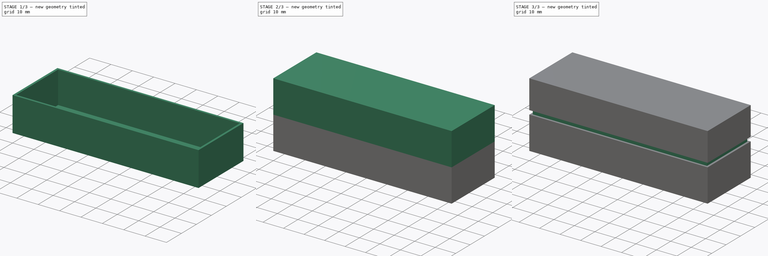
[diagram: build sequence overview — one tinted view per stage of 3, left to right]
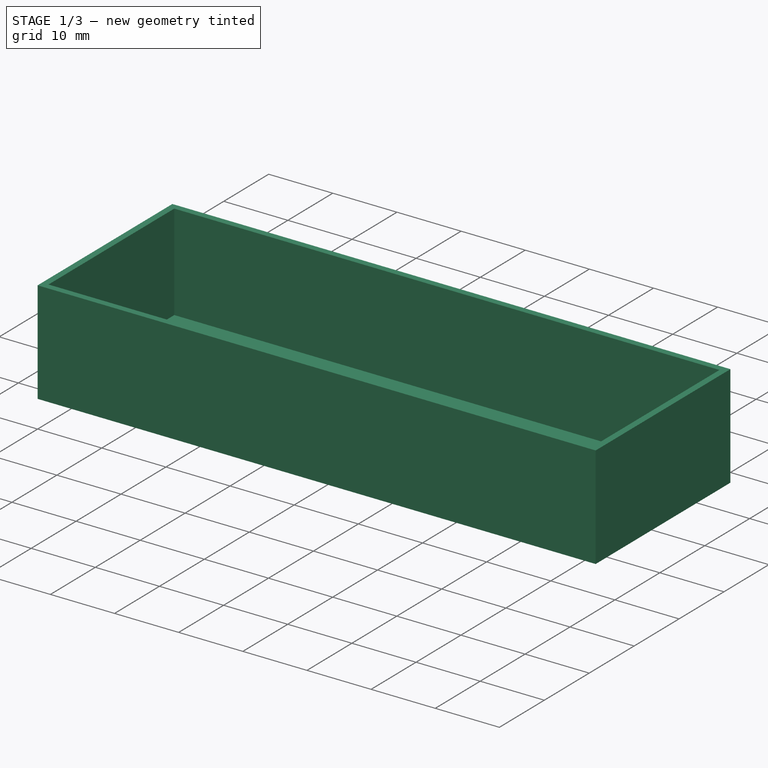
[diagram: stage 1 of 3 — iso view after this stage's code; geometry added in this stage tinted green]
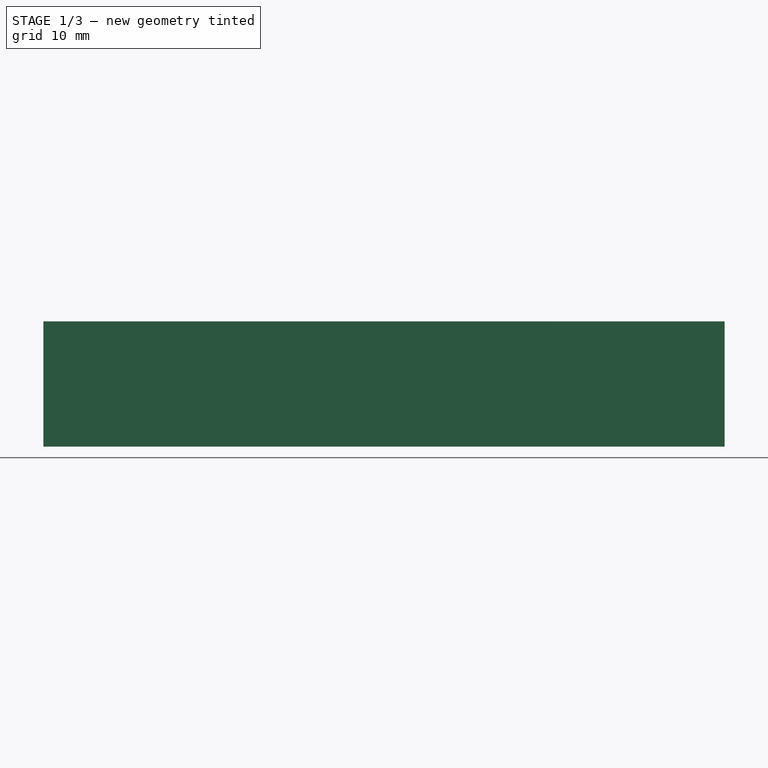
[diagram: stage 1 of 3 — front view after this stage's code; geometry added in this stage tinted green]
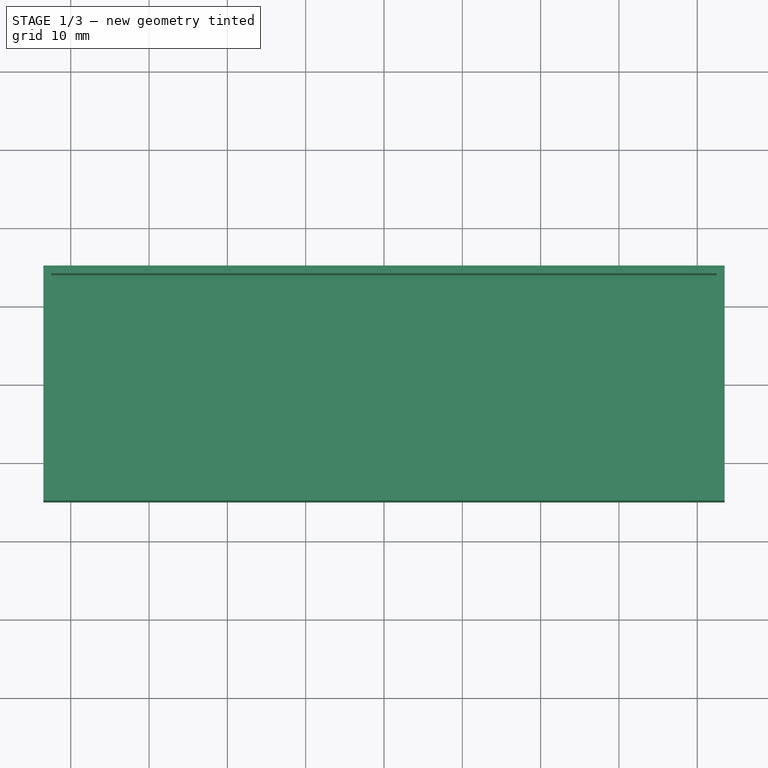
[diagram: stage 1 of 3 — top view after this stage's code; geometry added in this stage tinted green]
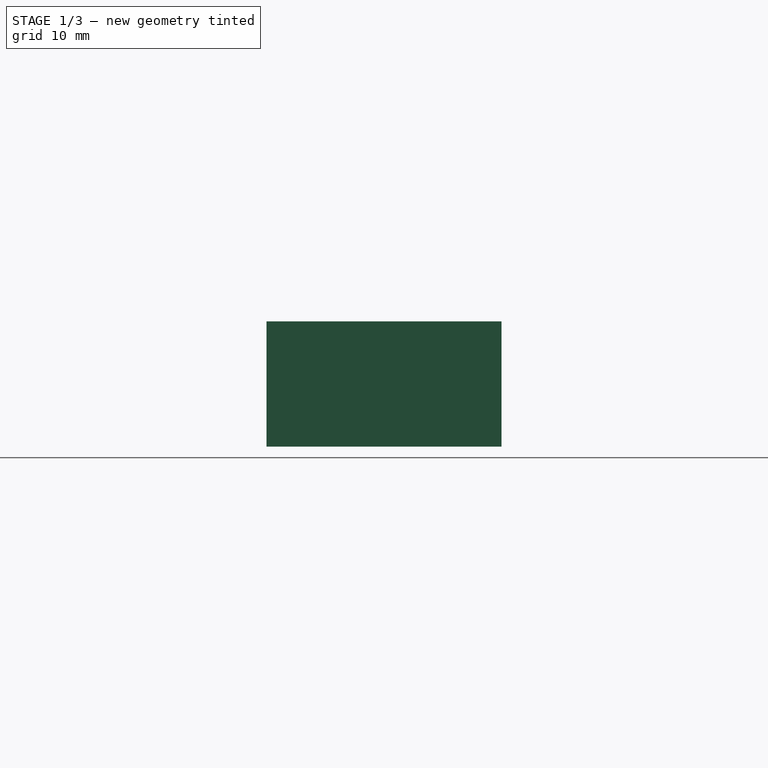
[diagram: stage 1 of 3 — right view after this stage's code; geometry added in this stage tinted green]
FCSTD DOCUMENT  (FreeCAD 0.19R24291 (Git))
Label: Bumuntu
License: All rights reserved
LicenseURL: http://en.wikipedia.org/wiki/All_rights_reserved
objects: Sketcher::SketchObject×5, PartDesign::Pocket×3, PartDesign::Pad×2, PartDesign::Body×2, Spreadsheet::Sheet×1, PartDesign::Fillet×1
note: 19 computed .brp shape members not serialized (recipe doc carries the construction recipe); baked Part::Feature solids carry a one-line shape summary decoded from their .brp

FEATURE [PartDesign::Body] Body  label="TileSleeve"
  Group = -> [Sketch,Pad,Sketch001,Pocket,Sketch002,Pocket001,Fillet]
  Origin = -> Origin
  Tip = -> Fillet
FEATURE [Sketcher::SketchObject] Sketch003
  FullyConstrained = true
  MapMode = 5
  Support = -> [XY_Plane001]
  expr: Constraints[9] = <<Spreadsheet>>.tile_width + 2 * <<Spreadsheet>>.wall_thickness
  expr: Constraints[8] = <<Spreadsheet>>.tile_thickness + 2 * <<Spreadsheet>>.wall_thickness
  sketch-geometry (4):
    g0: LineSegment StartX=-43.5 StartY=15 StartZ=0 EndX=43.5 EndY=15 EndZ=0
    g1: LineSegment StartX=43.5 StartY=15 StartZ=0 EndX=43.5 EndY=-15 EndZ=0
    g2: LineSegment StartX=43.5 StartY=-15 StartZ=0 EndX=-43.5 EndY=-15 EndZ=0
    g3: LineSegment StartX=-43.5 StartY=-15 StartZ=0 EndX=-43.5 EndY=15 EndZ=0
  constraints (10):
    c: Coincident(g0,g1)
    c: Coincident(g1,g2)
    c: Coincident(g2,g3)
    c: Coincident(g3,g0)
    c: Horizontal(g2)
    c: Vertical(g3)
    c: Symmetric(g0,g1,g-1)
    c: Symmetric(g0,g0,g-2)
    c: DistanceX(g0,g0) = 87
    c: DistanceY(g3,g3) = 30
FEATURE [PartDesign::Pad] Pad001
  Direction = (1,1,1)
  Length = 16
  Length2 = 100
  Profile = -> Sketch003
  Reversed = true
  Type = 0
  expr: Length = <<Spreadsheet>>.floor_thickness + <<Spreadsheet>>.tile_width / 2 + <<Spreadsheet>>.wall_thickness
FEATURE [Sketcher::SketchObject] Sketch004
  FullyConstrained = true
  MapMode = 5
  Support = -> [XY_Plane001]
  expr: Constraints[9] = <<Spreadsheet>>.wall_thickness + <<Spreadsheet>>.tile_width
  expr: Constraints[8] = <<Spreadsheet>>.wall_thickness + <<Spreadsheet>>.tile_thickness
  sketch-geometry (4):
    g0: LineSegment StartX=-42.5 StartY=14 StartZ=0 EndX=42.5 EndY=14 EndZ=0
    g1: LineSegment StartX=42.5 StartY=14 StartZ=0 EndX=42.5 EndY=-14 EndZ=0
    g2: LineSegment StartX=42.5 StartY=-14 StartZ=0 EndX=-42.5 EndY=-14 EndZ=0
    g3: LineSegment StartX=-42.5 StartY=-14 StartZ=0 EndX=-42.5 EndY=14 EndZ=0
  constraints (10):
    c: Coincident(g0,g1)
    c: Coincident(g1,g2)
    c: Coincident(g2,g3)
    c: Coincident(g3,g0)
    c: Horizontal(g2)
    c: Vertical(g1)
    c: Symmetric(g0,g0,g-2)
    c: Symmetric(g0,g2,g-1)
    c: DistanceX(g0,g0) = 85
    c: DistanceY(g3,g3) = 28
FEATURE [PartDesign::Pocket] Pocket002
  BaseFeature = -> Pad001
  Length = 15
  Length2 = 100
  Profile = -> Sketch004
  Type = 0
  expr: Length = <<Spreadsheet>>.wall_thickness + <<Spreadsheet>>.tile_width / 2
FEATURE [PartDesign::Body] Body001  label="TileLid"
  Group = -> [Sketch003,Pad001,Sketch004,Pocket002]
  Origin = -> Origin001
  Tip = -> Pocket002
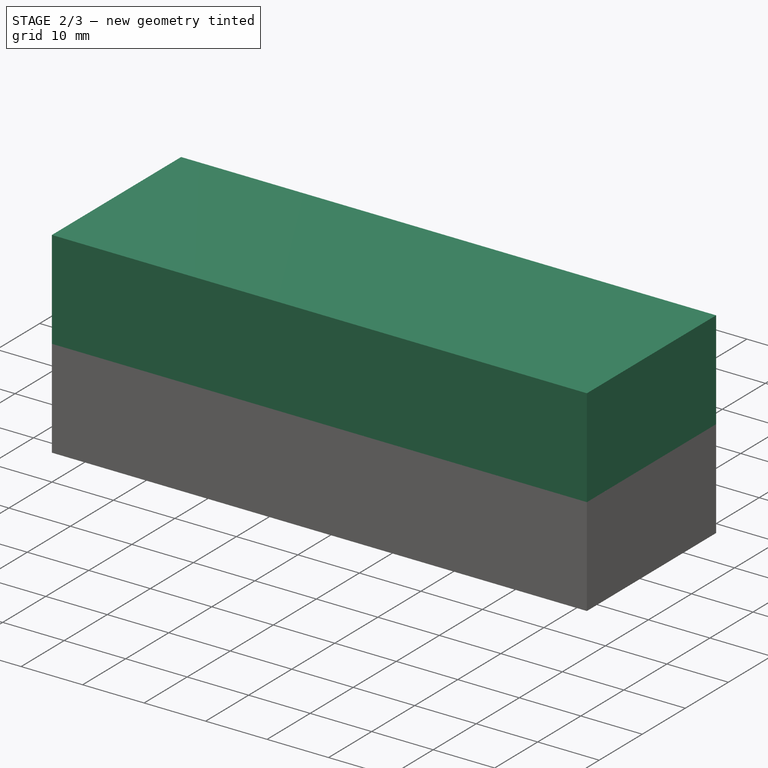
[diagram: stage 2 of 3 — iso view after this stage's code; geometry added in this stage tinted green]
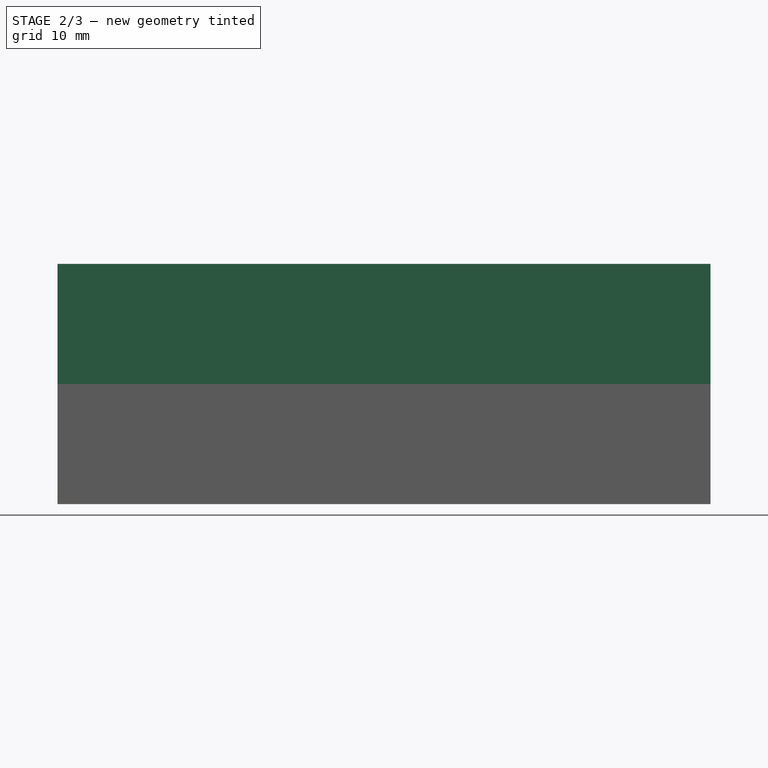
[diagram: stage 2 of 3 — front view after this stage's code; geometry added in this stage tinted green]
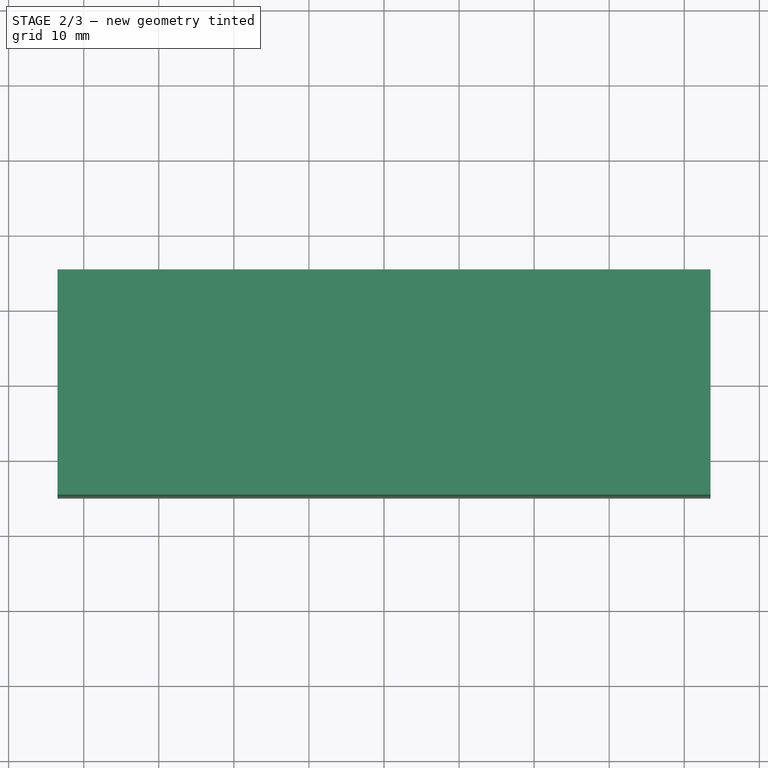
[diagram: stage 2 of 3 — top view after this stage's code; geometry added in this stage tinted green]
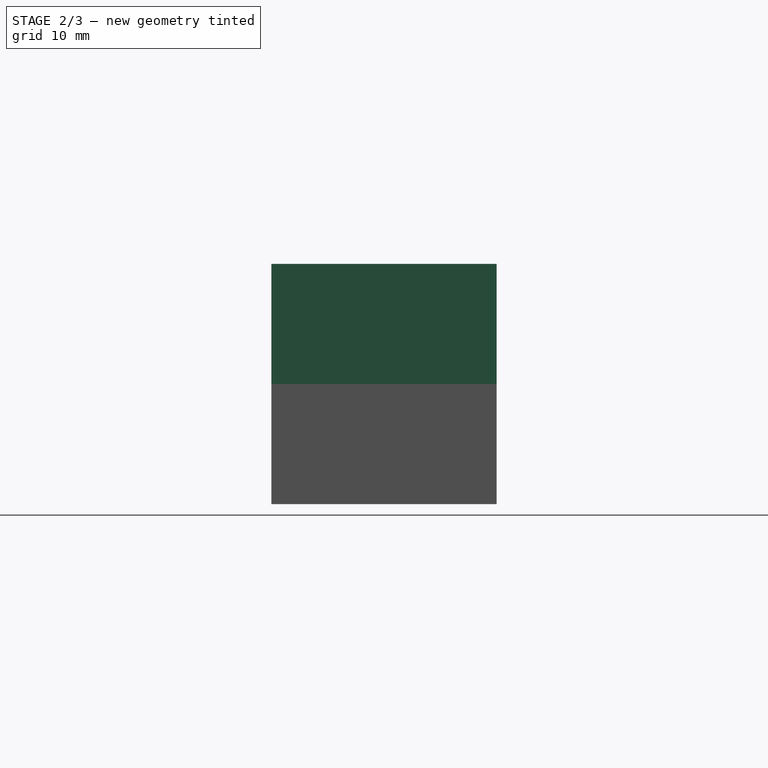
[diagram: stage 2 of 3 — right view after this stage's code; geometry added in this stage tinted green]
FEATURE [Sketcher::SketchObject] Sketch
  FullyConstrained = true
  MapMode = 5
  Support = -> [XY_Plane]
  expr: Constraints[7] = <<Spreadsheet>>.tile_width + 2 * <<Spreadsheet>>.wall_thickness
  expr: Constraints[6] = <<Spreadsheet>>.tile_thickness + 2 * <<Spreadsheet>>.wall_thickness
  sketch-geometry (4):
    g0: LineSegment StartX=-43.5 StartY=15 StartZ=0 EndX=43.5 EndY=15 EndZ=0
    g1: LineSegment StartX=43.5 StartY=15 StartZ=0 EndX=43.5 EndY=-15 EndZ=0
    g2: LineSegment StartX=43.5 StartY=-15 StartZ=0 EndX=-43.5 EndY=-15 EndZ=0
    g3: LineSegment StartX=-43.5 StartY=-15 StartZ=0 EndX=-43.5 EndY=15 EndZ=0
  constraints (10):
    c: Coincident(g0,g1)
    c: Coincident(g1,g2)
    c: Coincident(g2,g3)
    c: Coincident(g3,g0)
    c: Horizontal(g2)
    c: Vertical(g1)
    c: DistanceX(g0,g0) = 87
    c: DistanceY(g3,g3) = 30
    c: Symmetric(g0,g2,g-1)
    c: Symmetric(g0,g0,g-2)
FEATURE [PartDesign::Pad] Pad
  Direction = (1,1,1)
  Length = 16
  Length2 = 100
  Profile = -> Sketch
  Type = 0
  expr: Length = <<Spreadsheet>>.tile_width / 2 + <<Spreadsheet>>.floor_thickness + <<Spreadsheet>>.wall_thickness
FEATURE [Spreadsheet::Sheet] Spreadsheet
  cells = A2=tile_width; B2(tile_width)=26; A3=tile_thickness; B3(tile_thickness)=83; A4=wall_thickness; B4(wall_thickness)=2; A5=floor_thickness; B5(floor_thickness)=1
FEATURE [Sketcher::SketchObject] Sketch001
  FullyConstrained = true
  MapMode = 5
  Support = -> [XY_Plane]
  expr: Constraints[6] = <<Spreadsheet>>.tile_thickness
  expr: Constraints[7] = <<Spreadsheet>>.tile_width
  sketch-geometry (4):
    g0: LineSegment StartX=-41.5 StartY=13 StartZ=0 EndX=41.5 EndY=13 EndZ=0
    g1: LineSegment StartX=41.5 StartY=13 StartZ=0 EndX=41.5 EndY=-13 EndZ=0
    g2: LineSegment StartX=41.5 StartY=-13 StartZ=0 EndX=-41.5 EndY=-13 EndZ=0
    g3: LineSegment StartX=-41.5 StartY=-13 StartZ=0 EndX=-41.5 EndY=13 EndZ=0
  constraints (10):
    c: Coincident(g0,g1)
    c: Coincident(g1,g2)
    c: Coincident(g2,g3)
    c: Coincident(g3,g0)
    c: Horizontal(g2)
    c: Vertical(g1)
    c: DistanceX(g0,g0) = 83
    c: DistanceY(g3,g3) = 26
    c: Symmetric(g0,g2,g-1)
    c: Symmetric(g0,g0,g-2)
FEATURE [PartDesign::Pocket] Pocket
  BaseFeature = -> Pad
  Length = 15
  Length2 = 100
  Profile = -> Sketch001
  Reversed = true
  Type = 0
  expr: Length = <<Spreadsheet>>.tile_width / 2 + <<Spreadsheet>>.wall_thickness
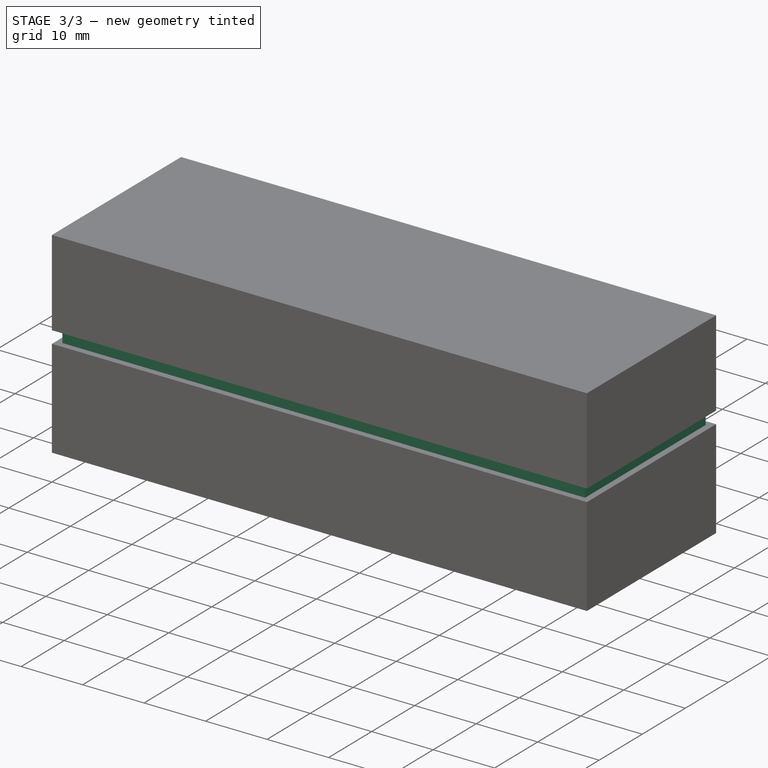
[diagram: stage 3 of 3 — iso view after this stage's code; geometry added in this stage tinted green]
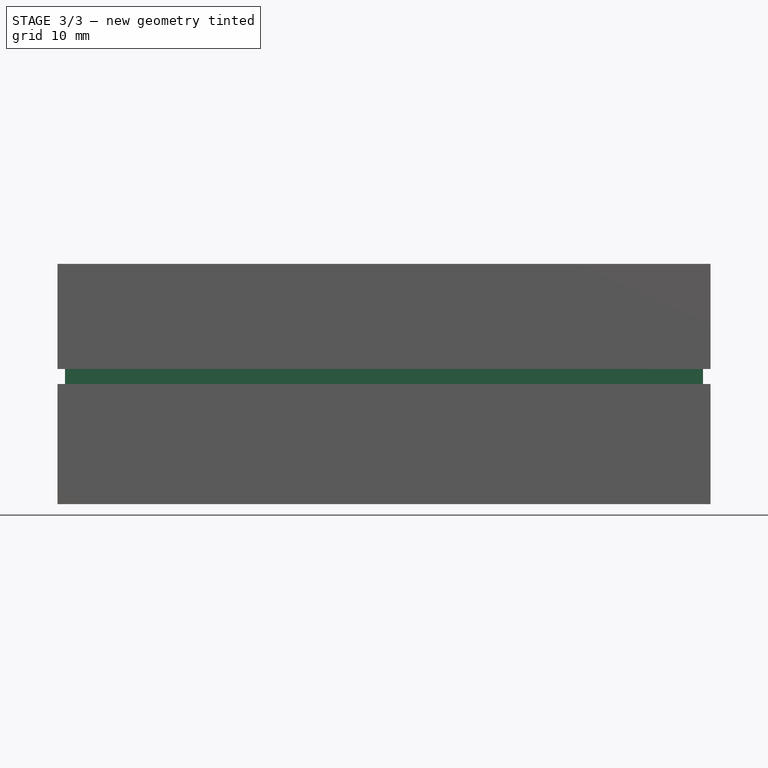
[diagram: stage 3 of 3 — front view after this stage's code; geometry added in this stage tinted green]
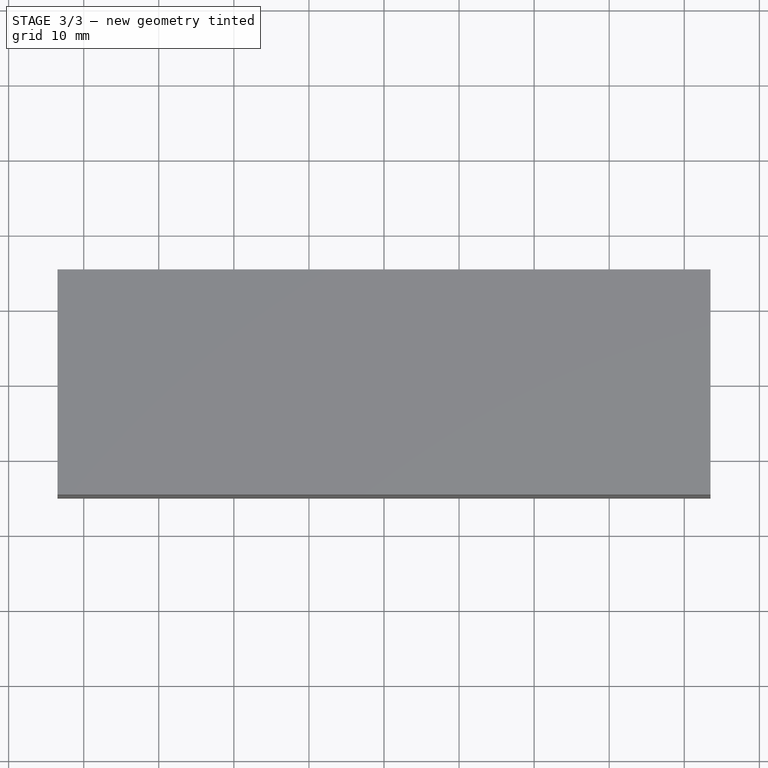
[diagram: stage 3 of 3 — top view after this stage's code; geometry added in this stage tinted green]
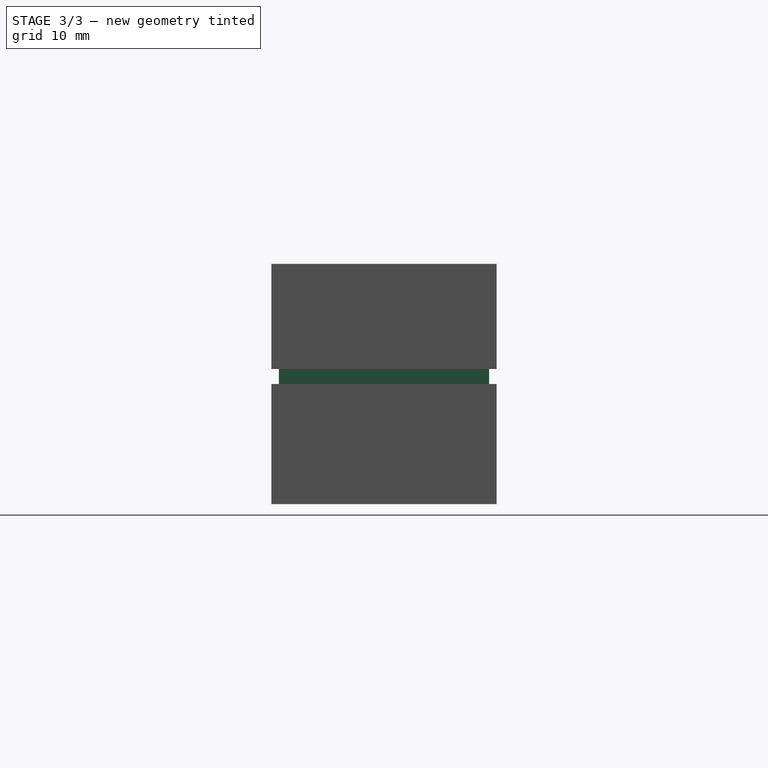
[diagram: stage 3 of 3 — right view after this stage's code; geometry added in this stage tinted green]
FEATURE [Sketcher::SketchObject] Sketch002
  FullyConstrained = true
  MapMode = 5
  Support = -> [XY_Plane]
  expr: Constraints[8] = <<Spreadsheet>>.tile_width + 2 * <<Spreadsheet>>.wall_thickness
  expr: Constraints[9] = <<Spreadsheet>>.tile_thickness + 2 * <<Spreadsheet>>.wall_thickness
  expr: Constraints[18] = <<Spreadsheet>>.tile_thickness + <<Spreadsheet>>.wall_thickness
  expr: Constraints[19] = <<Spreadsheet>>.tile_width + <<Spreadsheet>>.wall_thickness
  sketch-geometry (8):
    g0: LineSegment StartX=-43.5 StartY=15 StartZ=0 EndX=43.5 EndY=15 EndZ=0
    g1: LineSegment StartX=43.5 StartY=15 StartZ=0 EndX=43.5 EndY=-15 EndZ=0
    g2: LineSegment StartX=43.5 StartY=-15 StartZ=0 EndX=-43.5 EndY=-15 EndZ=0
    g3: LineSegment StartX=-43.5 StartY=-15 StartZ=0 EndX=-43.5 EndY=15 EndZ=0
    g4: LineSegment StartX=-42.5 StartY=14 StartZ=0 EndX=42.5 EndY=14 EndZ=0
    g5: LineSegment StartX=42.5 StartY=14 StartZ=0 EndX=42.5 EndY=-14 EndZ=0
    g6: LineSegment StartX=42.5 StartY=-14 StartZ=0 EndX=-42.5 EndY=-14 EndZ=0
    g7: LineSegment StartX=-42.5 StartY=-14 StartZ=0 EndX=-42.5 EndY=14 EndZ=0
  constraints (20):
    c: Coincident(g0,g1)
    c: Coincident(g1,g2)
    c: Coincident(g2,g3)
    c: Coincident(g3,g0)
    c: Horizontal(g2)
    c: Vertical(g3)
    c: Symmetric(g0,g1,g-1)
    c: Symmetric(g0,g0,g-2)
    c: DistanceY(g3,g3) = 30
    c: DistanceX(g0,g0) = 87
    c: Coincident(g4,g5)
    c: Coincident(g5,g6)
    c: Coincident(g6,g7)
    c: Coincident(g7,g4)
    c: Horizontal(g6)
    c: Vertical(g5)
    c: Symmetric(g4,g6,g-1)
    c: Symmetric(g4,g4,g-2)
    c: DistanceX(g4,g4) = 85
    c: DistanceY(g7,g7) = 28
FEATURE [PartDesign::Pocket] Pocket001
  BaseFeature = -> Pocket
  Length = 2
  Length2 = 100
  Profile = -> Sketch002
  Reversed = true
  Type = 0
  expr: Length = <<Spreadsheet>>.wall_thickness
FEATURE [PartDesign::Fillet] Fillet
  Base = -> Pocket001 [Face16]
  BaseFeature = -> Pocket001
  Radius = 1
  SupportTransform = false
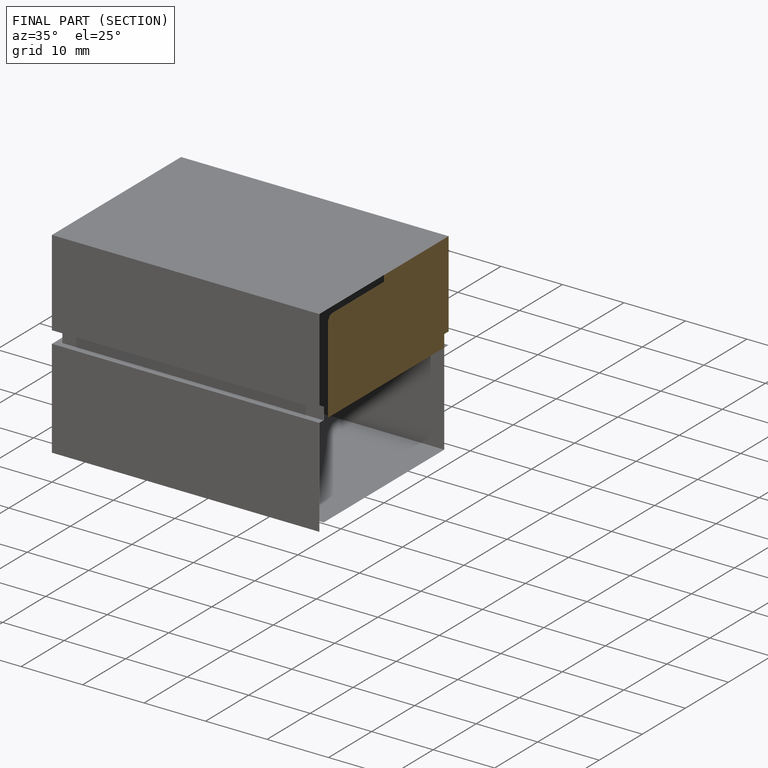
[diagram: finished part — half-section view (interior)]
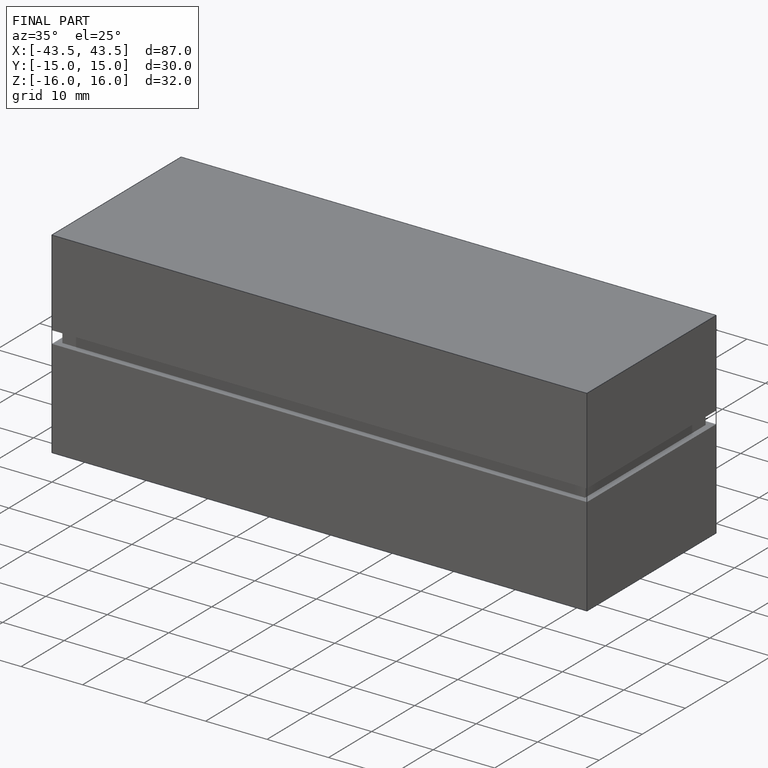
[diagram: finished part — iso view with bounding-box wireframe]
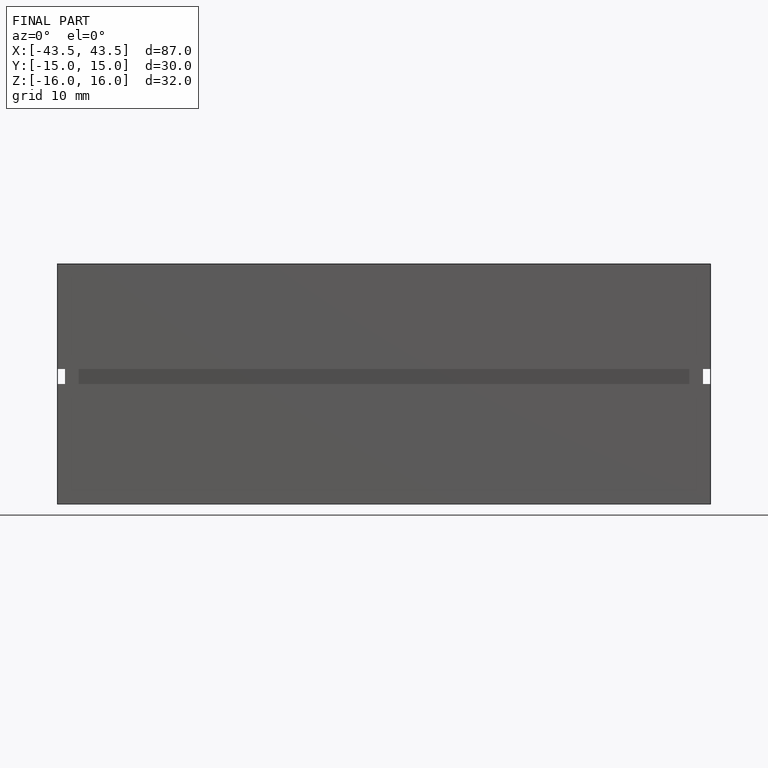
[diagram: finished part — front view with bounding-box wireframe]
